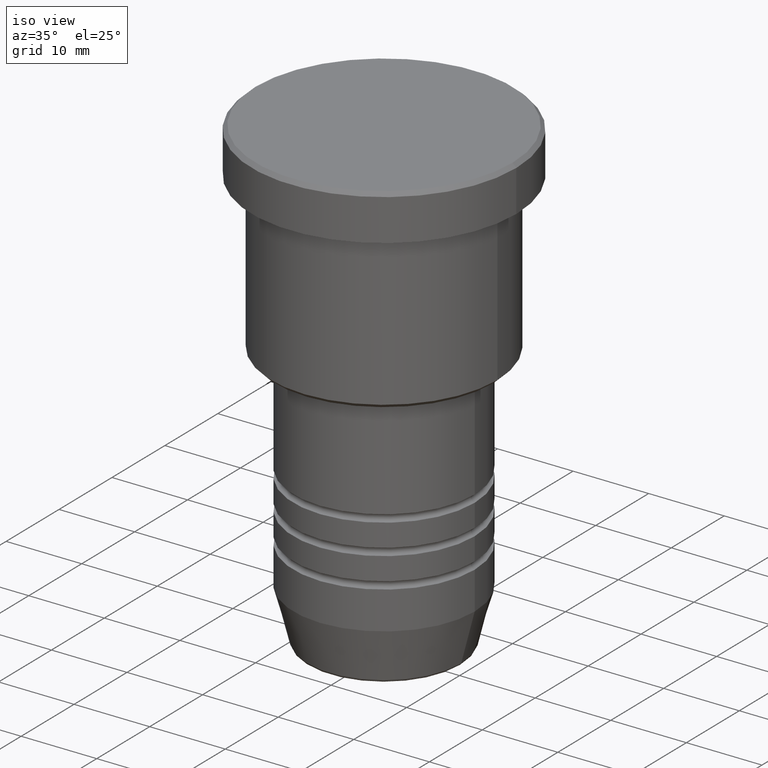
[diagram: clean part render]
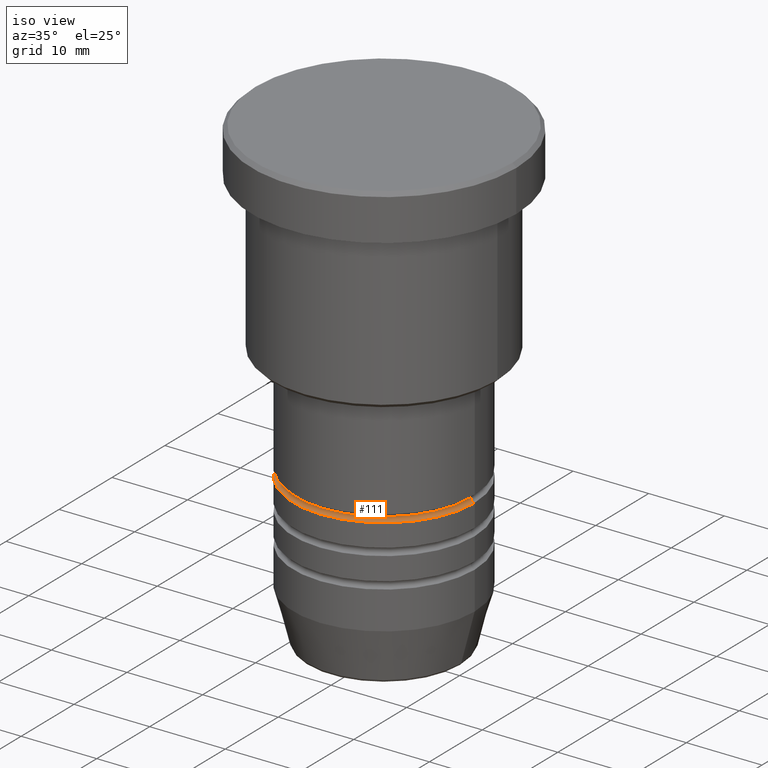
[diagram: same view with one face highlighted and labeled with its STEP entity id]
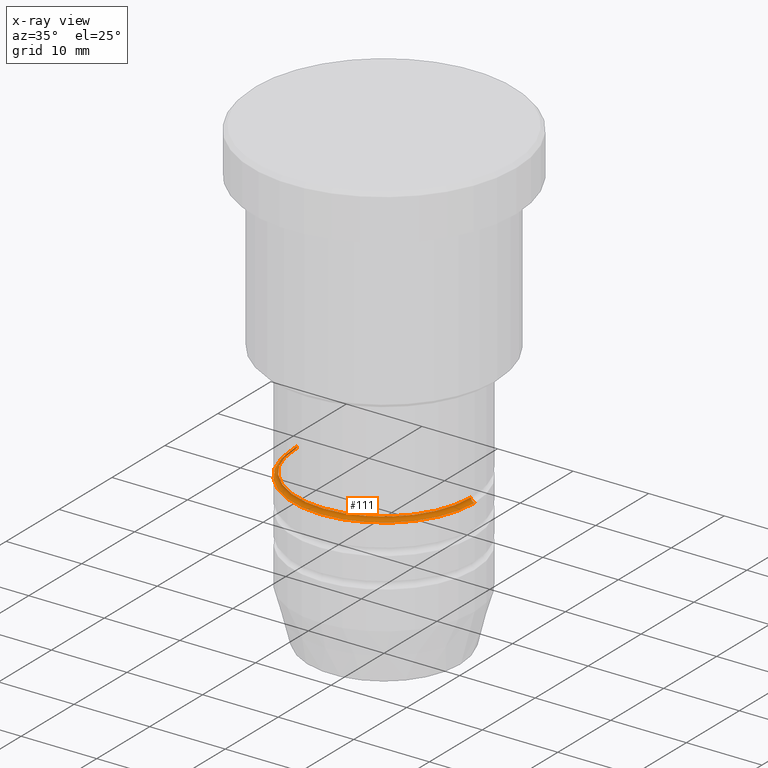
[diagram: x-ray of the same camera — body ghosted, the highlighted face saturated]
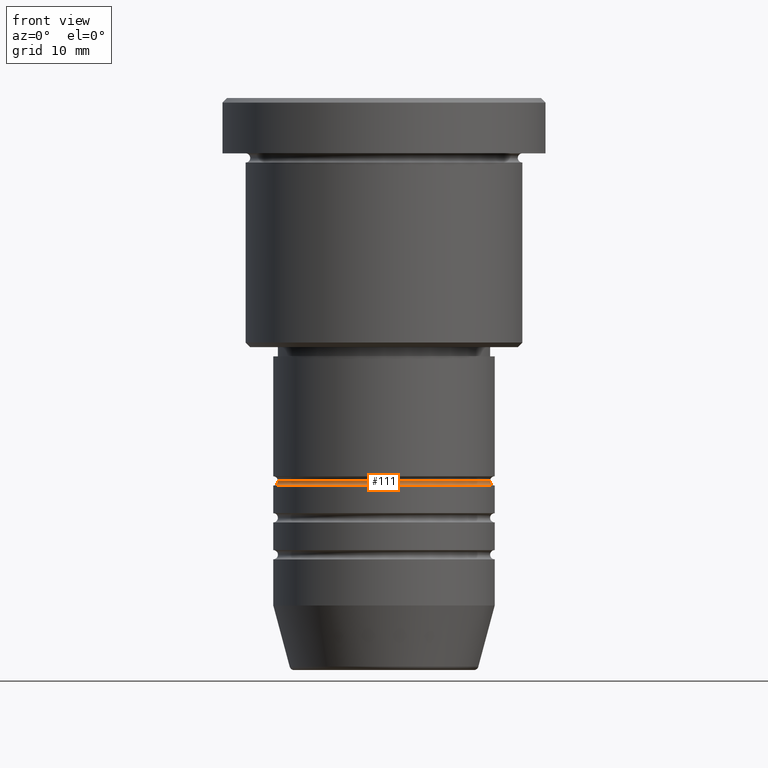
[diagram: same view with one face highlighted and labeled with its STEP entity id]
A machine part, iso view. The second image highlights one B-rep face of the part: STEP entity #111.
The next image is the same camera in x-ray: the body ghosted, the highlighted face saturated — about 2% of this face is hidden behind the body in this view.
A second angle (front view) of the same face is appended — the face is thin or edge-on in the first view.
In plain terms, the highlighted toroidal blend (fillet) surface has major radius 12 mm and minor (blend) radius 0.5 mm.
Its self-contained STEP definition (entity closure, byte-faithful):
#9 = AXIS2_PLACEMENT_3D ( 'NONE', #582, #356, #986 ) ;
#77 = DIRECTION ( 'NONE',  ( 0.000000000000000000, -1.000000000000000000, 0.000000000000000000 ) ) ;
#85 = ORIENTED_EDGE ( 'NONE', *, *, #894, .T. ) ;
#86 = CARTESIAN_POINT ( 'NONE',  ( 12.00000000000000000, 0.000000000000000000, -41.99999999999989342 ) ) ;
#94 = DIRECTION ( 'NONE',  ( -0.000000000000000000, -0.000000000000000000, 1.000000000000000000 ) ) ;
#111 = ADVANCED_FACE ( 'NONE', ( #728 ), #309, .F. ) ;
#177 = CARTESIAN_POINT ( 'NONE',  ( -12.00000000000000178, 1.469576158976824144E-15, -41.49999999999989342 ) ) ;
#184 = DIRECTION ( 'NONE',  ( 0.000000000000000000, 0.000000000000000000, -1.000000000000000000 ) ) ;
#225 = DIRECTION ( 'NONE',  ( -0.000000000000000000, -0.000000000000000000, 1.000000000000000000 ) ) ;
#247 = AXIS2_PLACEMENT_3D ( 'NONE', #300, #225, #667 ) ;
#263 = CARTESIAN_POINT ( 'NONE',  ( 0.000000000000000000, 0.000000000000000000, -41.49999999999989342 ) ) ;
#300 = CARTESIAN_POINT ( 'NONE',  ( 0.000000000000000000, 0.000000000000000000, -41.99999999999989342 ) ) ;
#308 = CIRCLE ( 'NONE', #9, 11.50000000000000178 ) ;
#309 = TOROIDAL_SURFACE ( 'NONE', #379, 12.00000000000000178, 0.5000000000000000000 ) ;
#316 = VERTEX_POINT ( 'NONE', #877 ) ;
#322 = DIRECTION ( 'NONE',  ( -1.000000000000000000, 1.224646799147353454E-16, 0.000000000000000000 ) ) ;
#349 = EDGE_CURVE ( 'NONE', #1071, #703, #880, .T. ) ;
#356 = DIRECTION ( 'NONE',  ( -0.000000000000000000, -0.000000000000000000, 1.000000000000000000 ) ) ;
#379 = AXIS2_PLACEMENT_3D ( 'NONE', #263, #94, #840 ) ;
#449 = CARTESIAN_POINT ( 'NONE',  ( 12.00000000000000178, 0.000000000000000000, -41.49999999999989342 ) ) ;
#529 = EDGE_CURVE ( 'NONE', #316, #687, #862, .T. ) ;
#531 = DIRECTION ( 'NONE',  ( 1.224646799147353207E-16, 1.000000000000000000, 0.000000000000000000 ) ) ;
#555 = AXIS2_PLACEMENT_3D ( 'NONE', #449, #77, #184 ) ;
#582 = CARTESIAN_POINT ( 'NONE',  ( 0.000000000000000000, 0.000000000000000000, -41.49999999999989342 ) ) ;
#639 = EDGE_CURVE ( 'NONE', #1071, #316, #308, .T. ) ;
#667 = DIRECTION ( 'NONE',  ( 1.000000000000000000, 0.000000000000000000, 0.000000000000000000 ) ) ;
#687 = VERTEX_POINT ( 'NONE', #86 ) ;
#703 = VERTEX_POINT ( 'NONE', #950 ) ;
#728 = FACE_OUTER_BOUND ( 'NONE', #1140, .T. ) ;
#840 = DIRECTION ( 'NONE',  ( 1.000000000000000000, 0.000000000000000000, 0.000000000000000000 ) ) ;
#862 = CIRCLE ( 'NONE', #555, 0.5000000000000004441 ) ;
#877 = CARTESIAN_POINT ( 'NONE',  ( 11.50000000000000178, 0.000000000000000000, -41.49999999999989342 ) ) ;
#880 = CIRCLE ( 'NONE', #1040, 0.5000000000000004441 ) ;
#894 = EDGE_CURVE ( 'NONE', #703, #687, #1173, .T. ) ;
#942 = ORIENTED_EDGE ( 'NONE', *, *, #639, .F. ) ;
#950 = CARTESIAN_POINT ( 'NONE',  ( -12.00000000000000000, 1.469576158976824144E-15, -41.99999999999989342 ) ) ;
#986 = DIRECTION ( 'NONE',  ( 1.000000000000000000, 0.000000000000000000, 0.000000000000000000 ) ) ;
#1017 = ORIENTED_EDGE ( 'NONE', *, *, #349, .T. ) ;
#1022 = ORIENTED_EDGE ( 'NONE', *, *, #529, .F. ) ;
#1040 = AXIS2_PLACEMENT_3D ( 'NONE', #177, #531, #322 ) ;
#1071 = VERTEX_POINT ( 'NONE', #1073 ) ;
#1073 = CARTESIAN_POINT ( 'NONE',  ( -11.50000000000000178, 1.438959988998140160E-15, -41.49999999999989342 ) ) ;
#1140 = EDGE_LOOP ( 'NONE', ( #942, #1017, #85, #1022 ) ) ;
#1173 = CIRCLE ( 'NONE', #247, 12.00000000000000000 ) ;